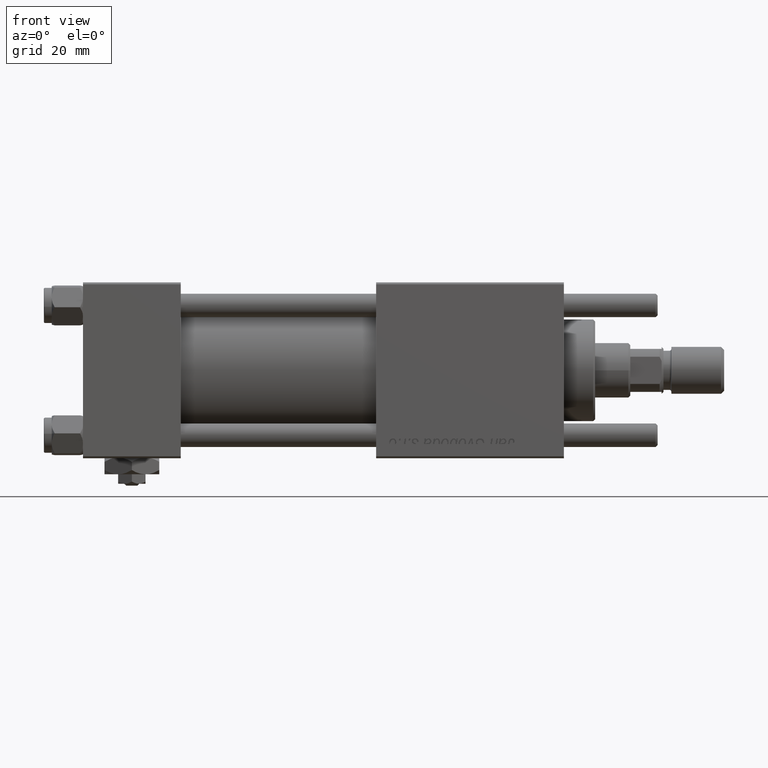
[diagram: clean part render]
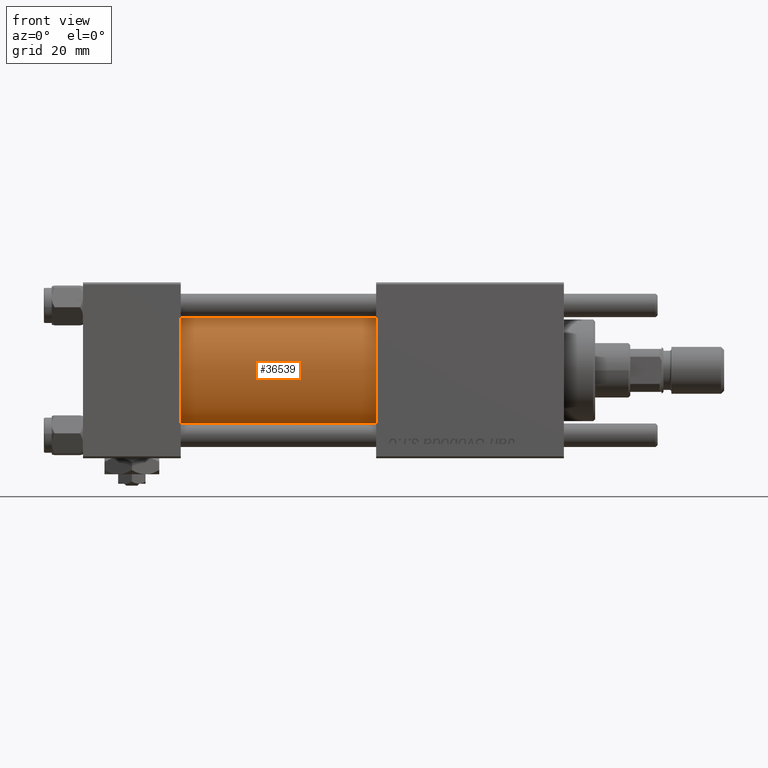
[diagram: same view with one face highlighted and labeled with its STEP entity id]
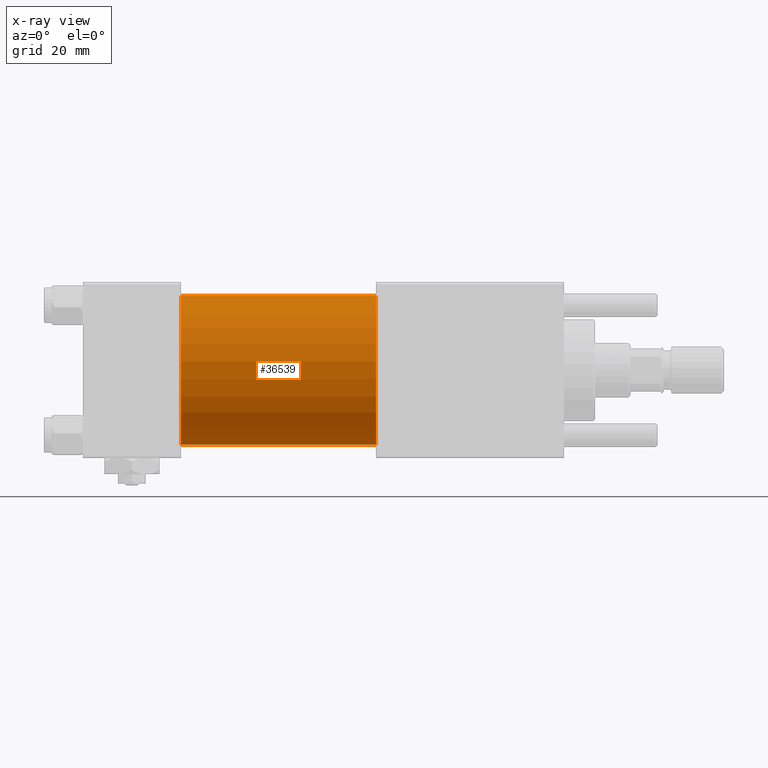
[diagram: x-ray of the same camera — body ghosted, the highlighted face saturated]
A machine part, front view. The second image highlights one B-rep face of the part: STEP entity #36539.
The next image is the same camera in x-ray: the body ghosted, the highlighted face saturated — about 0% of this face is hidden behind the body in this view.
In plain terms, the highlighted cylindrical surface (partial cylindrical patch) has radius 19 mm, axis along (-1, -0, -0).
Its self-contained STEP definition (entity closure, byte-faithful):
#2891 = VECTOR ( 'NONE', #10427, 1000.000000000000000 ) ;
#5437 = CARTESIAN_POINT ( 'NONE',  ( 75.00000000000001421, -2.752562955852396712E-16, -19.00000000000000000 ) ) ;
#6606 = DIRECTION ( 'NONE',  ( 0.000000000000000000, 0.000000000000000000, 1.000000000000000000 ) ) ;
#7572 = EDGE_CURVE ( 'NONE', #26042, #40083, #27228, .T. ) ;
#9621 = DIRECTION ( 'NONE',  ( -1.000000000000000000, -0.000000000000000000, -0.000000000000000000 ) ) ;
#10200 = VECTOR ( 'NONE', #9621, 1000.000000000000000 ) ;
#10273 = CARTESIAN_POINT ( 'NONE',  ( 75.00000000000001421, -2.752562955852396712E-16, -19.00000000000000000 ) ) ;
#10427 = DIRECTION ( 'NONE',  ( -1.000000000000000000, -0.000000000000000000, -0.000000000000000000 ) ) ;
#10985 = EDGE_CURVE ( 'NONE', #40083, #23323, #55434, .T. ) ;
#15576 = CYLINDRICAL_SURFACE ( 'NONE', #55962, 19.00000000000000000 ) ;
#16876 = ORIENTED_EDGE ( 'NONE', *, *, #7572, .T. ) ;
#18520 = CIRCLE ( 'NONE', #20382, 19.00000000000000000 ) ;
#18636 = CARTESIAN_POINT ( 'NONE',  ( 75.00000000000001421, -2.602085213965210642E-15, 0.000000000000000000 ) ) ;
#19339 = ORIENTED_EDGE ( 'NONE', *, *, #22179, .F. ) ;
#20297 = CARTESIAN_POINT ( 'NONE',  ( 25.00000000000000000, -2.602085213965210642E-15, 19.00000000000000000 ) ) ;
#20382 = AXIS2_PLACEMENT_3D ( 'NONE', #18636, #32055, #58289 ) ;
#22179 = EDGE_CURVE ( 'NONE', #26042, #35199, #18520, .T. ) ;
#23323 = VERTEX_POINT ( 'NONE', #54962 ) ;
#25361 = CARTESIAN_POINT ( 'NONE',  ( 25.00000000000000000, -2.602085213965210642E-15, 0.000000000000000000 ) ) ;
#26042 = VERTEX_POINT ( 'NONE', #35148 ) ;
#26929 = CARTESIAN_POINT ( 'NONE',  ( 75.00000000000001421, -2.602085213965210642E-15, 19.00000000000000000 ) ) ;
#27228 = LINE ( 'NONE', #26929, #2891 ) ;
#30589 = ORIENTED_EDGE ( 'NONE', *, *, #35439, .F. ) ;
#32055 = DIRECTION ( 'NONE',  ( 1.000000000000000000, 0.000000000000000000, 0.000000000000000000 ) ) ;
#35148 = CARTESIAN_POINT ( 'NONE',  ( 75.00000000000001421, -2.602085213965210642E-15, 19.00000000000000000 ) ) ;
#35199 = VERTEX_POINT ( 'NONE', #10273 ) ;
#35439 = EDGE_CURVE ( 'NONE', #35199, #23323, #41224, .T. ) ;
#35677 = ORIENTED_EDGE ( 'NONE', *, *, #10985, .T. ) ;
#36398 = AXIS2_PLACEMENT_3D ( 'NONE', #25361, #44105, #39346 ) ;
#36539 = ADVANCED_FACE ( 'NONE', ( #57295 ), #15576, .T. ) ;
#39346 = DIRECTION ( 'NONE',  ( 0.000000000000000000, 0.000000000000000000, 1.000000000000000000 ) ) ;
#40083 = VERTEX_POINT ( 'NONE', #20297 ) ;
#41224 = LINE ( 'NONE', #5437, #10200 ) ;
#44105 = DIRECTION ( 'NONE',  ( 1.000000000000000000, -0.000000000000000000, 0.000000000000000000 ) ) ;
#44620 = EDGE_LOOP ( 'NONE', ( #30589, #19339, #16876, #35677 ) ) ;
#47172 = DIRECTION ( 'NONE',  ( -1.000000000000000000, -0.000000000000000000, -0.000000000000000000 ) ) ;
#54962 = CARTESIAN_POINT ( 'NONE',  ( 25.00000000000000000, -2.752562955852396712E-16, -19.00000000000000000 ) ) ;
#55434 = CIRCLE ( 'NONE', #36398, 19.00000000000000000 ) ;
#55962 = AXIS2_PLACEMENT_3D ( 'NONE', #57004, #47172, #6606 ) ;
#57004 = CARTESIAN_POINT ( 'NONE',  ( 75.00000000000001421, -2.602085213965210642E-15, 0.000000000000000000 ) ) ;
#57295 = FACE_OUTER_BOUND ( 'NONE', #44620, .T. ) ;
#58289 = DIRECTION ( 'NONE',  ( 0.000000000000000000, 0.000000000000000000, -1.000000000000000000 ) ) ;